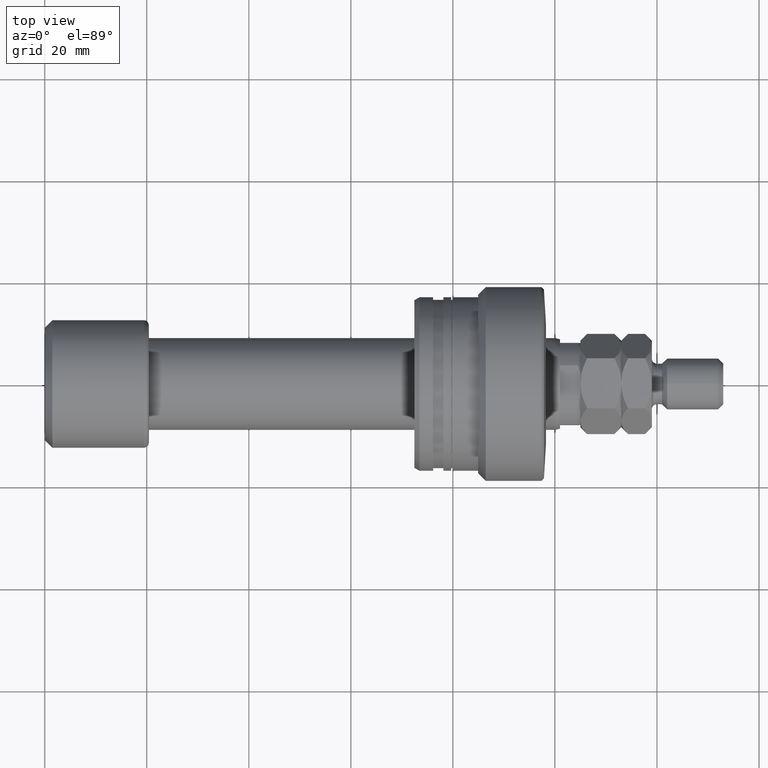
[diagram: clean part render]
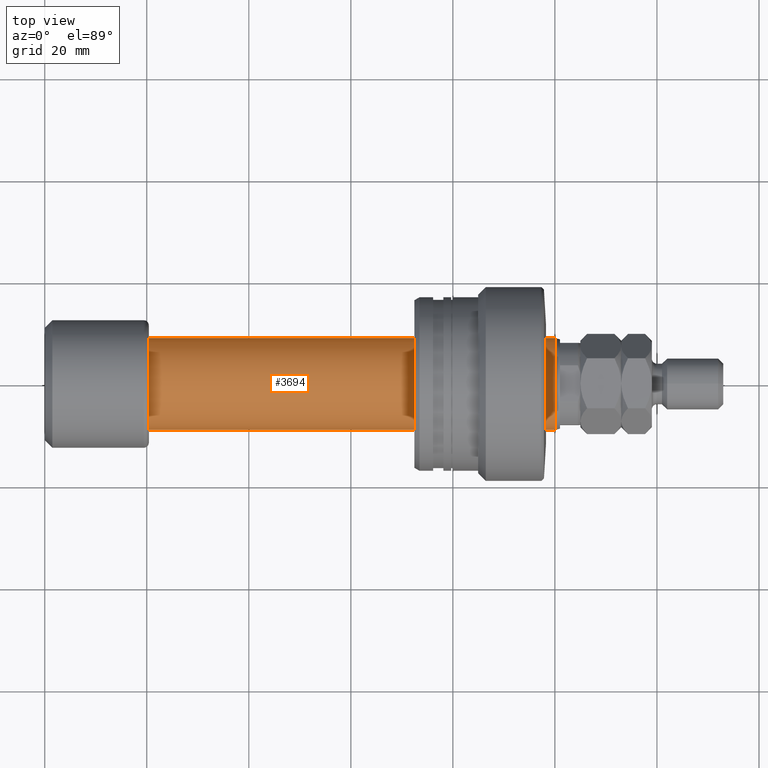
[diagram: same view with one face highlighted and labeled with its STEP entity id]
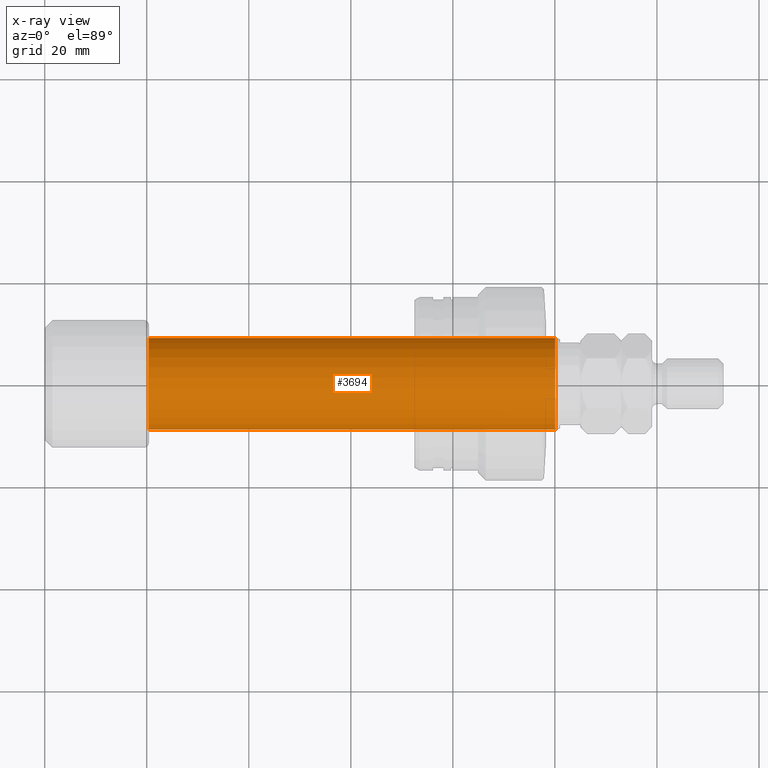
[diagram: x-ray of the same camera — body ghosted, the highlighted face saturated]
A machine part, top view. The second image highlights one B-rep face of the part: STEP entity #3694.
The next image is the same camera in x-ray: the body ghosted, the highlighted face saturated — about 0% of this face is hidden behind the body in this view.
In plain terms, the highlighted cylindrical surface (partial cylindrical patch) has radius 9 mm, axis along (-1, -0, -0).
Its self-contained STEP definition (entity closure, byte-faithful):
#46 = EDGE_CURVE ( 'NONE', #1993, #1913, #3401, .T. ) ;
#64 = CARTESIAN_POINT ( 'NONE',  ( 20.39999999999999503, -9.000000000000000000, 0.000000000000000000 ) ) ;
#144 = CARTESIAN_POINT ( 'NONE',  ( 100.0667575123237754, 1.070256321916529121E-15, 0.000000000000000000 ) ) ;
#266 = EDGE_CURVE ( 'NONE', #3766, #1993, #1366, .T. ) ;
#374 = CARTESIAN_POINT ( 'NONE',  ( 0.000000000000000000, 0.000000000000000000, 0.000000000000000000 ) ) ;
#515 = DIRECTION ( 'NONE',  ( -1.000000000000000000, -1.069542322069065801E-17, -0.000000000000000000 ) ) ;
#620 = CARTESIAN_POINT ( 'NONE',  ( -9.625880898621695591E-17, 9.000000000000095923, 1.102182119232629744E-15 ) ) ;
#683 = CARTESIAN_POINT ( 'NONE',  ( 20.39999999999999503, 9.000000000000000000, 1.102182119232623630E-15 ) ) ;
#971 = ORIENTED_EDGE ( 'NONE', *, *, #266, .T. ) ;
#1031 = DIRECTION ( 'NONE',  ( -1.000000000000000000, -1.069542322069065801E-17, -0.000000000000000000 ) ) ;
#1366 = CIRCLE ( 'NONE', #2653, 9.000000000000193623 ) ;
#1381 = ORIENTED_EDGE ( 'NONE', *, *, #3514, .F. ) ;
#1450 = CIRCLE ( 'NONE', #3927, 9.000000000000000000 ) ;
#1478 = LINE ( 'NONE', #2045, #1706 ) ;
#1606 = CYLINDRICAL_SURFACE ( 'NONE', #2033, 9.000000000000095923 ) ;
#1706 = VECTOR ( 'NONE', #515, 1000.000000000000000 ) ;
#1913 = VERTEX_POINT ( 'NONE', #683 ) ;
#1936 = DIRECTION ( 'NONE',  ( 1.069542322069065955E-17, -1.000000000000000000, 0.000000000000000000 ) ) ;
#1987 = ORIENTED_EDGE ( 'NONE', *, *, #46, .T. ) ;
#1993 = VERTEX_POINT ( 'NONE', #2695 ) ;
#2033 = AXIS2_PLACEMENT_3D ( 'NONE', #374, #1031, #1936 ) ;
#2045 = CARTESIAN_POINT ( 'NONE',  ( 9.625880898621695591E-17, -9.000000000000095923, 0.000000000000000000 ) ) ;
#2226 = FACE_OUTER_BOUND ( 'NONE', #2751, .T. ) ;
#2234 = DIRECTION ( 'NONE',  ( 0.000000000000000000, -1.000000000000000000, 0.000000000000000000 ) ) ;
#2243 = DIRECTION ( 'NONE',  ( 0.000000000000000000, -1.000000000000000000, 0.000000000000000000 ) ) ;
#2280 = DIRECTION ( 'NONE',  ( -1.000000000000000000, -1.069542322069065801E-17, -0.000000000000000000 ) ) ;
#2458 = CARTESIAN_POINT ( 'NONE',  ( 20.39999999999999503, 2.181866337020893623E-16, 0.000000000000000000 ) ) ;
#2553 = CARTESIAN_POINT ( 'NONE',  ( 100.0667575123237754, -9.000000000000191847, 0.000000000000000000 ) ) ;
#2653 = AXIS2_PLACEMENT_3D ( 'NONE', #144, #2280, #2243 ) ;
#2695 = CARTESIAN_POINT ( 'NONE',  ( 100.0667575123237754, 9.000000000000195399, 1.102182119232641577E-15 ) ) ;
#2751 = EDGE_LOOP ( 'NONE', ( #971, #1987, #3134, #1381 ) ) ;
#3062 = VECTOR ( 'NONE', #3137, 1000.000000000000000 ) ;
#3134 = ORIENTED_EDGE ( 'NONE', *, *, #3226, .F. ) ;
#3137 = DIRECTION ( 'NONE',  ( -1.000000000000000000, -1.069542322069065801E-17, -0.000000000000000000 ) ) ;
#3226 = EDGE_CURVE ( 'NONE', #3714, #1913, #1450, .T. ) ;
#3401 = LINE ( 'NONE', #620, #3062 ) ;
#3514 = EDGE_CURVE ( 'NONE', #3766, #3714, #1478, .T. ) ;
#3694 = ADVANCED_FACE ( 'NONE', ( #2226 ), #1606, .T. ) ;
#3709 = DIRECTION ( 'NONE',  ( -1.000000000000000000, -1.069542322069065801E-17, -0.000000000000000000 ) ) ;
#3714 = VERTEX_POINT ( 'NONE', #64 ) ;
#3766 = VERTEX_POINT ( 'NONE', #2553 ) ;
#3927 = AXIS2_PLACEMENT_3D ( 'NONE', #2458, #3709, #2234 ) ;